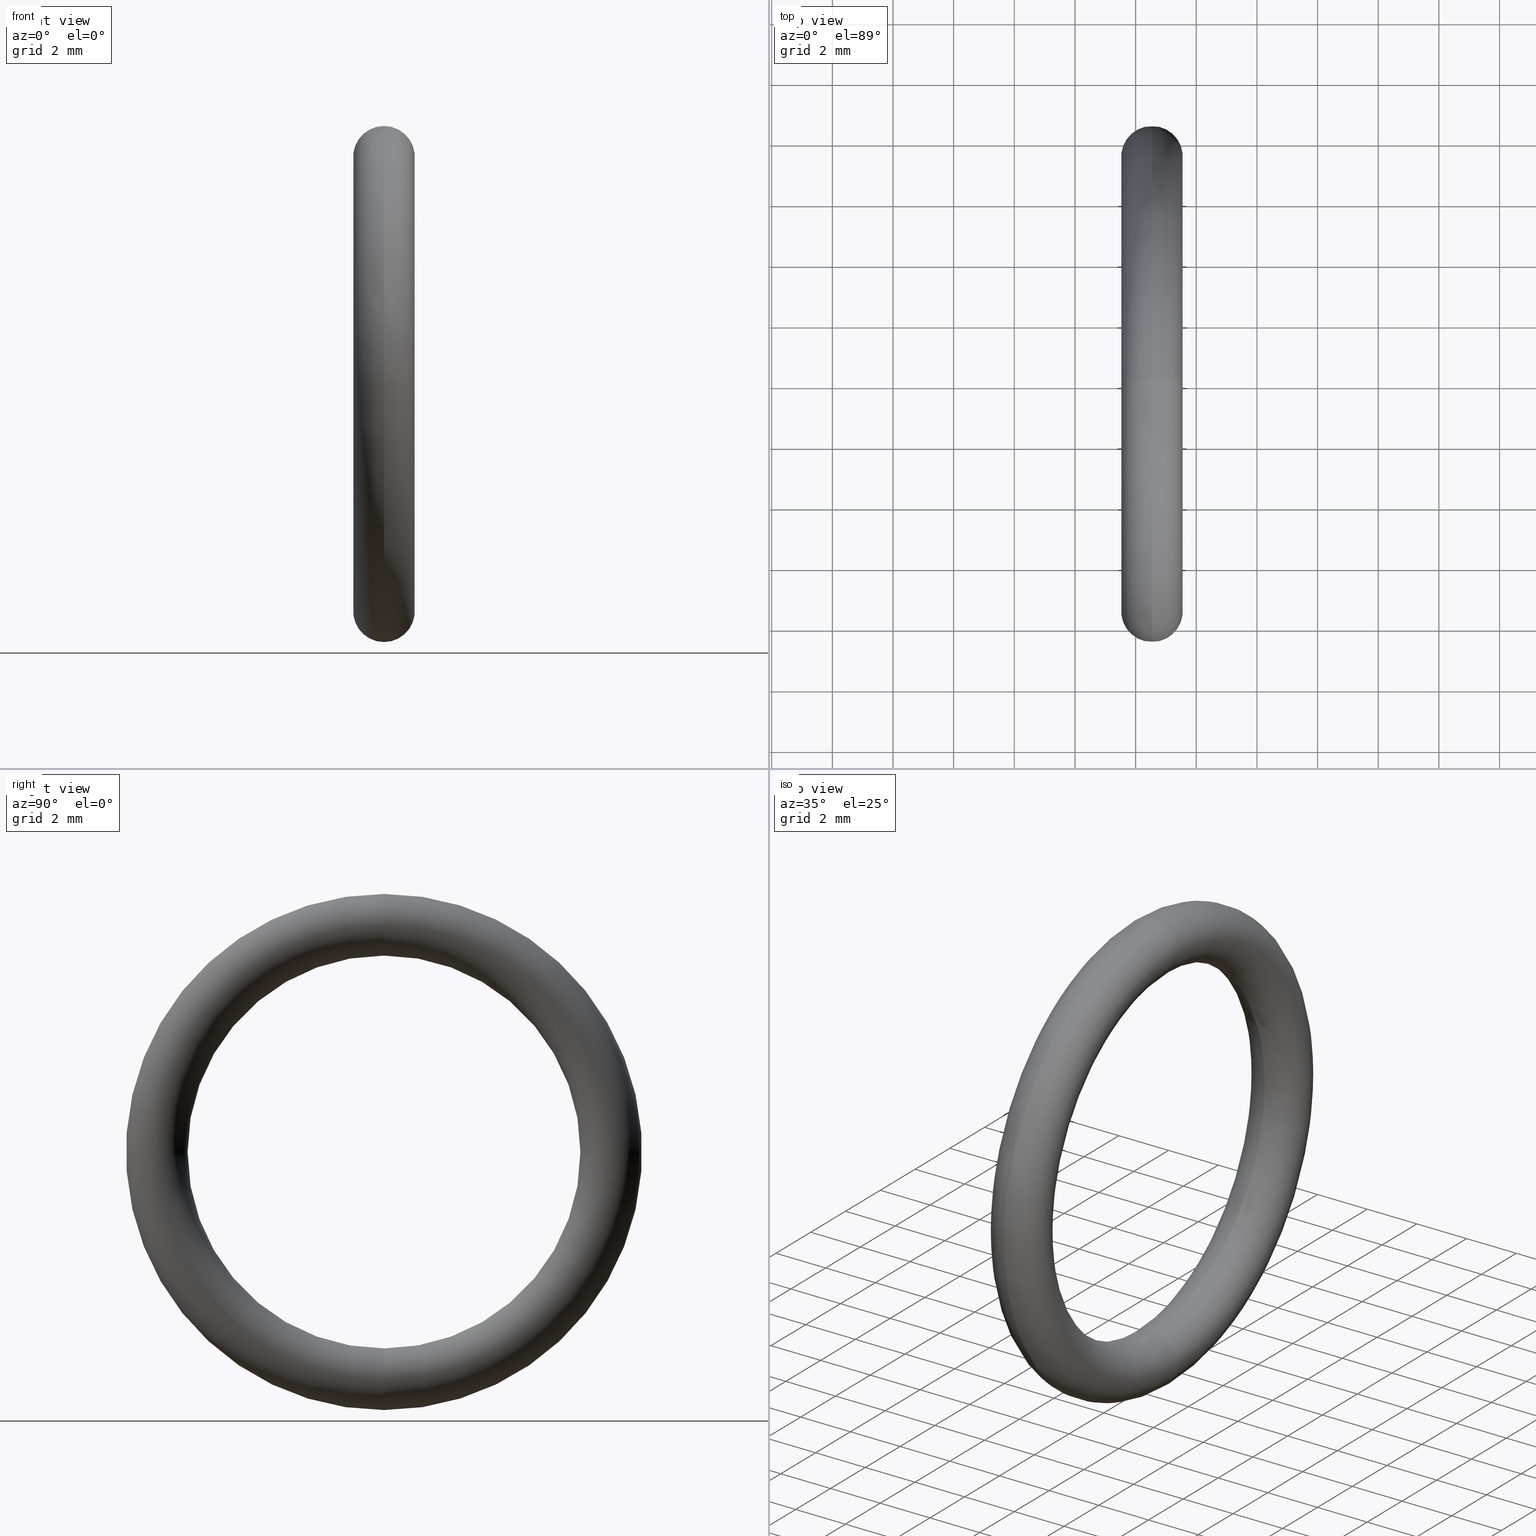
[diagram: canonical four-view strip — front | top / right | iso, engineering-drawing reading convention]
A machine part, canonical four-view strip (front | top / right | iso — engineering-drawing reading convention). The complete STEP part file that produces these views, byte-faithful:
ISO-10303-21;
HEADER;
FILE_DESCRIPTION (( 'STEP AP203' ),
    '1' );
FILE_NAME ('OR-38-BN.STEP',
    '2008-03-29T10:02:29',
    ( 'Baystate-05' ),
    ( 'BayState InfoTech' ),
    'SwSTEP 2.0',
    'SolidWorks 2007',
    '' );
FILE_SCHEMA (( 'CONFIG_CONTROL_DESIGN' ));
ENDSEC;

DATA;
#1 = DIRECTION ( 'NONE',  ( -1.000000000000000000, 0.0000000000000000000, 0.0000000000000000000 ) ) ;
#2 = DIRECTION ( 'NONE',  ( 0.0000000000000000000, 0.0000000000000000000, 1.000000000000000000 ) ) ;
#3 = EDGE_CURVE ( 'NONE', #4, #81, #5, .T. ) ;
#4 = VERTEX_POINT ( 'NONE', #54 ) ;
#5 = CIRCLE ( 'NONE', #58, 0.03999999999999998000 ) ;
#6 = CARTESIAN_POINT ( 'NONE',  ( 0.1000000000000000500, 0.0000000000000000000, 0.0000000000000000000 ) ) ;
#7 = DIRECTION ( 'NONE',  ( 0.0000000000000000000, 0.0000000000000000000, 1.000000000000000000 ) ) ;
#8 = DIRECTION ( 'NONE',  ( -1.000000000000000000, 0.0000000000000000000, 0.0000000000000000000 ) ) ;
#9 = CARTESIAN_POINT ( 'NONE',  ( 0.1000000000000000500, 0.0000000000000000000, 0.0000000000000000000 ) ) ;
#10 = AXIS2_PLACEMENT_3D ( 'NONE', #9, #8, #7 ) ;
#11 = CARTESIAN_POINT ( 'NONE',  ( 0.1000000000000000500, 0.0000000000000000000, 0.0000000000000000000 ) ) ;
#12 = EDGE_LOOP ( 'NONE', ( #79, #43, #42, #20 ) ) ;
#13 = ADVANCED_FACE ( 'NONE', ( #53 ), #52, .T. ) ;
#14 = ORIENTED_EDGE ( 'NONE', *, *, #41, .F. ) ;
#15 = ORIENTED_EDGE ( 'NONE', *, *, #71, .F. ) ;
#16 = CLOSED_SHELL ( 'NONE', ( #78, #39, #13, #72 ) ) ;
#17 = ORIENTED_EDGE ( 'NONE', *, *, #64, .T. ) ;
#18 = VERTEX_POINT ( 'NONE', #86 ) ;
#19 = EDGE_CURVE ( 'NONE', #18, #21, #93, .T. ) ;
#20 = ORIENTED_EDGE ( 'NONE', *, *, #40, .F. ) ;
#21 = VERTEX_POINT ( 'NONE', #88 ) ;
#22 = ORIENTED_EDGE ( 'NONE', *, *, #19, .F. ) ;
#23 = EDGE_LOOP ( 'NONE', ( #22, #17, #24, #15 ) ) ;
#24 = ORIENTED_EDGE ( 'NONE', *, *, #3, .T. ) ;
#25 = CARTESIAN_POINT ( 'NONE',  ( 0.1000000000000000500, 0.0000000000000000000, 0.0000000000000000000 ) ) ;
#26 = AXIS2_PLACEMENT_3D ( 'NONE', #25, #1, #2 ) ;
#27 = CIRCLE ( 'NONE', #26, 0.2550000000000000000 ) ;
#28 = DIRECTION ( 'NONE',  ( 0.0000000000000000000, 0.0000000000000000000, -1.000000000000000000 ) ) ;
#29 = DIRECTION ( 'NONE',  ( 0.0000000000000000000, -1.000000000000000000, 0.0000000000000000000 ) ) ;
#30 = CARTESIAN_POINT ( 'NONE',  ( 0.1000000000000000500, 0.0000000000000000000, 0.2949999999999999800 ) ) ;
#31 = AXIS2_PLACEMENT_3D ( 'NONE', #30, #29, #28 ) ;
#32 = CIRCLE ( 'NONE', #31, 0.03999999999999998000 ) ;
#33 = CIRCLE ( 'NONE', #10, 0.2550000000000000000 ) ;
#34 = DIRECTION ( 'NONE',  ( 0.0000000000000000000, 0.0000000000000000000, 1.000000000000000000 ) ) ;
#35 = DIRECTION ( 'NONE',  ( -1.000000000000000000, 0.0000000000000000000, 0.0000000000000000000 ) ) ;
#36 = CARTESIAN_POINT ( 'NONE',  ( 0.1000000000000000500, 0.0000000000000000000, 0.0000000000000000000 ) ) ;
#37 = AXIS2_PLACEMENT_3D ( 'NONE', #36, #35, #34 ) ;
#38 = TOROIDAL_SURFACE ( 'NONE', #37, 0.2949999999999999800, 0.04000000000000000100 ) ;
#39 = ADVANCED_FACE ( 'NONE', ( #87 ), #38, .T. ) ;
#40 = EDGE_CURVE ( 'NONE', #81, #21, #33, .T. ) ;
#41 = EDGE_CURVE ( 'NONE', #4, #18, #51, .T. ) ;
#42 = ORIENTED_EDGE ( 'NONE', *, *, #19, .T. ) ;
#43 = ORIENTED_EDGE ( 'NONE', *, *, #41, .T. ) ;
#44 = DIRECTION ( 'NONE',  ( -1.000000000000000000, 0.0000000000000000000, 0.0000000000000000000 ) ) ;
#45 = AXIS2_PLACEMENT_3D ( 'NONE', #6, #44, #77 ) ;
#46 = CIRCLE ( 'NONE', #45, 0.3349999999999999600 ) ;
#47 = CARTESIAN_POINT ( 'NONE',  ( 0.1000000000000000500, 3.612708057484692000E-017, -0.2949999999999999800 ) ) ;
#48 = DIRECTION ( 'NONE',  ( 0.0000000000000000000, 0.0000000000000000000, 1.000000000000000000 ) ) ;
#49 = DIRECTION ( 'NONE',  ( -1.000000000000000000, 0.0000000000000000000, 0.0000000000000000000 ) ) ;
#50 = AXIS2_PLACEMENT_3D ( 'NONE', #11, #49, #48 ) ;
#51 = CIRCLE ( 'NONE', #50, 0.3349999999999999600 ) ;
#52 = TOROIDAL_SURFACE ( 'NONE', #85, 0.2949999999999999800, 0.04000000000000000100 ) ;
#53 = FACE_OUTER_BOUND ( 'NONE', #66, .T. ) ;
#54 = CARTESIAN_POINT ( 'NONE',  ( 0.1000000000000000500, 4.102566777143632800E-017, -0.3349999999999999600 ) ) ;
#55 = DIRECTION ( 'NONE',  ( 0.0000000000000000000, -1.224646799147353900E-016, 1.000000000000000000 ) ) ;
#56 = DIRECTION ( 'NONE',  ( 0.0000000000000000000, 1.000000000000000000, 1.224646799147353200E-016 ) ) ;
#57 = CARTESIAN_POINT ( 'NONE',  ( 0.1000000000000000500, 3.612708057484692000E-017, -0.2949999999999999800 ) ) ;
#58 = AXIS2_PLACEMENT_3D ( 'NONE', #57, #56, #55 ) ;
#59 = ORIENTED_EDGE ( 'NONE', *, *, #67, .T. ) ;
#60 = ORIENTED_EDGE ( 'NONE', *, *, #71, .T. ) ;
#61 = ORIENTED_EDGE ( 'NONE', *, *, #67, .F. ) ;
#62 = ORIENTED_EDGE ( 'NONE', *, *, #64, .F. ) ;
#63 = ORIENTED_EDGE ( 'NONE', *, *, #68, .T. ) ;
#64 = EDGE_CURVE ( 'NONE', #18, #4, #46, .T. ) ;
#65 = EDGE_LOOP ( 'NONE', ( #14, #61, #70, #63 ) ) ;
#66 = EDGE_LOOP ( 'NONE', ( #62, #69, #60, #59 ) ) ;
#67 = EDGE_CURVE ( 'NONE', #81, #4, #76, .T. ) ;
#68 = EDGE_CURVE ( 'NONE', #21, #18, #32, .T. ) ;
#69 = ORIENTED_EDGE ( 'NONE', *, *, #68, .F. ) ;
#70 = ORIENTED_EDGE ( 'NONE', *, *, #40, .T. ) ;
#71 = EDGE_CURVE ( 'NONE', #21, #81, #27, .T. ) ;
#72 = ADVANCED_FACE ( 'NONE', ( #123 ), #101, .T. ) ;
#73 = DIRECTION ( 'NONE',  ( 0.0000000000000000000, -1.224646799147353900E-016, 1.000000000000000000 ) ) ;
#74 = DIRECTION ( 'NONE',  ( 0.0000000000000000000, 1.000000000000000000, 1.224646799147353200E-016 ) ) ;
#75 = AXIS2_PLACEMENT_3D ( 'NONE', #47, #74, #73 ) ;
#76 = CIRCLE ( 'NONE', #75, 0.03999999999999998000 ) ;
#77 = DIRECTION ( 'NONE',  ( 0.0000000000000000000, 0.0000000000000000000, 1.000000000000000000 ) ) ;
#78 = ADVANCED_FACE ( 'NONE', ( #122 ), #124, .T. ) ;
#79 = ORIENTED_EDGE ( 'NONE', *, *, #3, .F. ) ;
#80 = MANIFOLD_SOLID_BREP ( 'NONE', #16 ) ;
#81 = VERTEX_POINT ( 'NONE', #119 ) ;
#82 = DIRECTION ( 'NONE',  ( 0.0000000000000000000, 0.0000000000000000000, 1.000000000000000000 ) ) ;
#83 = DIRECTION ( 'NONE',  ( -1.000000000000000000, 0.0000000000000000000, 0.0000000000000000000 ) ) ;
#84 = CARTESIAN_POINT ( 'NONE',  ( 0.1000000000000000500, 0.0000000000000000000, 0.0000000000000000000 ) ) ;
#85 = AXIS2_PLACEMENT_3D ( 'NONE', #84, #83, #82 ) ;
#86 = CARTESIAN_POINT ( 'NONE',  ( 0.1000000000000000500, 0.0000000000000000000, 0.3349999999999999600 ) ) ;
#87 = FACE_OUTER_BOUND ( 'NONE', #23, .T. ) ;
#88 = CARTESIAN_POINT ( 'NONE',  ( 0.1000000000000000500, 0.0000000000000000000, 0.2550000000000000000 ) ) ;
#89 = DIRECTION ( 'NONE',  ( 0.0000000000000000000, 0.0000000000000000000, -1.000000000000000000 ) ) ;
#90 = DIRECTION ( 'NONE',  ( 0.0000000000000000000, -1.000000000000000000, 0.0000000000000000000 ) ) ;
#91 = CARTESIAN_POINT ( 'NONE',  ( 0.1000000000000000500, 0.0000000000000000000, 0.2949999999999999800 ) ) ;
#92 = AXIS2_PLACEMENT_3D ( 'NONE', #91, #90, #89 ) ;
#93 = CIRCLE ( 'NONE', #92, 0.03999999999999998000 ) ;
#94 = UNCERTAINTY_MEASURE_WITH_UNIT (LENGTH_MEASURE( 1.000000000000000100E-005 ), #95, 'distance_accuracy_value', 'NONE');
#95 =( CONVERSION_BASED_UNIT ( 'INCH', #96 ) LENGTH_UNIT ( ) NAMED_UNIT ( #117 ) );
#96 = LENGTH_MEASURE_WITH_UNIT ( LENGTH_MEASURE( 0.02539999999999999900 ), #115 );
#97 =( GEOMETRIC_REPRESENTATION_CONTEXT ( 3 ) GLOBAL_UNCERTAINTY_ASSIGNED_CONTEXT ( ( #94 ) ) GLOBAL_UNIT_ASSIGNED_CONTEXT ( ( #95, #103, #116 ) ) REPRESENTATION_CONTEXT ( 'NONE', 'WORKASPACE' ) );
#98 = CARTESIAN_POINT ( 'NONE',  ( 0.1000000000000000500, 0.0000000000000000000, 0.0000000000000000000 ) ) ;
#99 = DIRECTION ( 'NONE',  ( 0.0000000000000000000, 0.0000000000000000000, 1.000000000000000000 ) ) ;
#100 = DIRECTION ( 'NONE',  ( -1.000000000000000000, 0.0000000000000000000, 0.0000000000000000000 ) ) ;
#101 = TOROIDAL_SURFACE ( 'NONE', #118, 0.2949999999999999800, 0.04000000000000000100 ) ;
#102 = DIRECTION ( 'NONE',  ( 0.0000000000000000000, 0.0000000000000000000, 1.000000000000000000 ) ) ;
#103 =( NAMED_UNIT ( * ) PLANE_ANGLE_UNIT ( ) SI_UNIT ( $, .RADIAN. ) );
#104 = ADVANCED_BREP_SHAPE_REPRESENTATION ( 'OR-38-BN', ( #80, #108 ), #97 ) ;
#105 = DIRECTION ( 'NONE',  ( 1.000000000000000000, 0.0000000000000000000, 0.0000000000000000000 ) ) ;
#106 = DIRECTION ( 'NONE',  ( 0.0000000000000000000, 0.0000000000000000000, 1.000000000000000000 ) ) ;
#107 = CARTESIAN_POINT ( 'NONE',  ( 0.0000000000000000000, 0.0000000000000000000, 0.0000000000000000000 ) ) ;
#108 = AXIS2_PLACEMENT_3D ( 'NONE', #107, #106, #105 ) ;
#109 = PERSON ( 'UNSPECIFIED', 'UNSPECIFIED', 'UNSPECIFIED', ('UNSPECIFIED'), ('UNSPECIFIED'), ('UNSPECIFIED') ) ;
#110 = PRODUCT ( 'OR-38-BN', 'OR-38-BN', '', ( #111 ) ) ;
#111 = MECHANICAL_CONTEXT ( 'NONE', #113, 'mechanical' ) ;
#112 = APPLICATION_PROTOCOL_DEFINITION ( 'international standard', 'config_control_design', 1994, #113 ) ;
#113 = APPLICATION_CONTEXT ( 'configuration controlled 3d designs of mechanical parts and assemblies' ) ;
#114 = CARTESIAN_POINT ( 'NONE',  ( 0.1000000000000000500, 0.0000000000000000000, 0.0000000000000000000 ) ) ;
#115 =( LENGTH_UNIT ( ) NAMED_UNIT ( * ) SI_UNIT ( $, .METRE. ) );
#116 =( NAMED_UNIT ( * ) SI_UNIT ( $, .STERADIAN. ) SOLID_ANGLE_UNIT ( ) );
#117 = DIMENSIONAL_EXPONENTS ( 1.000000000000000000, 0.0000000000000000000, 0.0000000000000000000, 0.0000000000000000000, 0.0000000000000000000, 0.0000000000000000000, 0.0000000000000000000 ) ;
#118 = AXIS2_PLACEMENT_3D ( 'NONE', #98, #121, #102 ) ;
#119 = CARTESIAN_POINT ( 'NONE',  ( 0.1000000000000000500, 3.122849337825750500E-017, -0.2550000000000000000 ) ) ;
#120 = AXIS2_PLACEMENT_3D ( 'NONE', #114, #100, #99 ) ;
#121 = DIRECTION ( 'NONE',  ( -1.000000000000000000, 0.0000000000000000000, 0.0000000000000000000 ) ) ;
#122 = FACE_OUTER_BOUND ( 'NONE', #12, .T. ) ;
#123 = FACE_OUTER_BOUND ( 'NONE', #65, .T. ) ;
#124 = TOROIDAL_SURFACE ( 'NONE', #120, 0.2949999999999999800, 0.04000000000000000100 ) ;
#125 = PERSON_AND_ORGANIZATION_ROLE ( 'creator' ) ;
#126 = PERSON_AND_ORGANIZATION ( #109, #145 ) ;
#127 = CC_DESIGN_APPROVAL ( #146, ( #150 ) ) ;
#128 = APPROVAL_DATE_TIME ( #179, #146 ) ;
#129 = LOCAL_TIME ( 15, 32, 29.00000000000000000, #130 ) ;
#130 = COORDINATED_UNIVERSAL_TIME_OFFSET ( 5, 30, .AHEAD. ) ;
#131 = CC_DESIGN_DATE_AND_TIME_ASSIGNMENT ( #133, #132, ( #150 ) ) ;
#132 = DATE_TIME_ROLE ( 'creation_date' ) ;
#133 = DATE_AND_TIME ( #134, #129 ) ;
#134 = CALENDAR_DATE ( 2008, 29, 3 ) ;
#135 = PERSON_AND_ORGANIZATION_ROLE ( 'creator' ) ;
#136 = PERSON_AND_ORGANIZATION ( #109, #145 ) ;
#137 = CC_DESIGN_APPROVAL ( #156, ( #173 ) ) ;
#138 = APPROVAL_DATE_TIME ( #151, #156 ) ;
#139 = PERSON_AND_ORGANIZATION ( #109, #145 ) ;
#140 = SECURITY_CLASSIFICATION_LEVEL ( 'unclassified' ) ;
#141 = CC_DESIGN_PERSON_AND_ORGANIZATION_ASSIGNMENT ( #143, #142, ( #173 ) ) ;
#142 = PERSON_AND_ORGANIZATION_ROLE ( 'design_supplier' ) ;
#143 = PERSON_AND_ORGANIZATION ( #109, #145 ) ;
#144 = CC_DESIGN_PERSON_AND_ORGANIZATION_ASSIGNMENT ( #136, #135, ( #173 ) ) ;
#145 = ORGANIZATION ( 'UNSPECIFIED', 'UNSPECIFIED', '' ) ;
#146 = APPROVAL ( #147, 'UNSPECIFIED' ) ;
#147 = APPROVAL_STATUS ( 'not_yet_approved' ) ;
#148 = DESIGN_CONTEXT ( 'detailed design', #196, 'design' ) ;
#149 = PERSON_AND_ORGANIZATION ( #109, #145 ) ;
#150 = PRODUCT_DEFINITION ( 'UNKNOWN', '', #173, #148 ) ;
#151 = DATE_AND_TIME ( #152, #153 ) ;
#152 = CALENDAR_DATE ( 2008, 29, 3 ) ;
#153 = LOCAL_TIME ( 15, 32, 29.00000000000000000, #154 ) ;
#154 = COORDINATED_UNIVERSAL_TIME_OFFSET ( 5, 30, .AHEAD. ) ;
#155 = APPROVAL_PERSON_ORGANIZATION ( #172, #156, #170 ) ;
#156 = APPROVAL ( #171, 'UNSPECIFIED' ) ;
#157 = PERSON_AND_ORGANIZATION ( #109, #145 ) ;
#158 = SHAPE_DEFINITION_REPRESENTATION ( #159, #104 ) ;
#159 = PRODUCT_DEFINITION_SHAPE ( 'NONE', 'NONE',  #150 ) ;
#160 = PRODUCT_RELATED_PRODUCT_CATEGORY ( 'detail', '', ( #110 ) ) ;
#161 = APPROVAL ( #162, 'UNSPECIFIED' ) ;
#162 = APPROVAL_STATUS ( 'not_yet_approved' ) ;
#163 = PERSON_AND_ORGANIZATION ( #109, #145 ) ;
#164 = CC_DESIGN_DATE_AND_TIME_ASSIGNMENT ( #166, #165, ( #176 ) ) ;
#165 = DATE_TIME_ROLE ( 'classification_date' ) ;
#166 = DATE_AND_TIME ( #167, #168 ) ;
#167 = CALENDAR_DATE ( 2008, 29, 3 ) ;
#168 = LOCAL_TIME ( 15, 32, 29.00000000000000000, #169 ) ;
#169 = COORDINATED_UNIVERSAL_TIME_OFFSET ( 5, 30, .AHEAD. ) ;
#170 = APPROVAL_ROLE ( '' ) ;
#171 = APPROVAL_STATUS ( 'not_yet_approved' ) ;
#172 = PERSON_AND_ORGANIZATION ( #109, #145 ) ;
#173 = PRODUCT_DEFINITION_FORMATION_WITH_SPECIFIED_SOURCE ( 'ANY', '', #110, .NOT_KNOWN. ) ;
#174 = CC_DESIGN_PERSON_AND_ORGANIZATION_ASSIGNMENT ( #139, #175, ( #176 ) ) ;
#175 = PERSON_AND_ORGANIZATION_ROLE ( 'classification_officer' ) ;
#176 = SECURITY_CLASSIFICATION ( '', '', #140 ) ;
#177 = CC_DESIGN_PERSON_AND_ORGANIZATION_ASSIGNMENT ( #126, #125, ( #150 ) ) ;
#178 = APPLICATION_PROTOCOL_DEFINITION ( 'international standard', 'config_control_design', 1994, #196 ) ;
#179 = DATE_AND_TIME ( #180, #181 ) ;
#180 = CALENDAR_DATE ( 2008, 29, 3 ) ;
#181 = LOCAL_TIME ( 15, 32, 29.00000000000000000, #182 ) ;
#182 = COORDINATED_UNIVERSAL_TIME_OFFSET ( 5, 30, .AHEAD. ) ;
#183 = PERSON_AND_ORGANIZATION_ROLE ( 'design_owner' ) ;
#184 = CC_DESIGN_PERSON_AND_ORGANIZATION_ASSIGNMENT ( #157, #183, ( #110 ) ) ;
#185 = APPROVAL_PERSON_ORGANIZATION ( #149, #146, #186 ) ;
#186 = APPROVAL_ROLE ( '' ) ;
#187 = CC_DESIGN_SECURITY_CLASSIFICATION ( #176, ( #173 ) ) ;
#188 = CC_DESIGN_APPROVAL ( #161, ( #176 ) ) ;
#189 = APPROVAL_DATE_TIME ( #190, #161 ) ;
#190 = DATE_AND_TIME ( #191, #192 ) ;
#191 = CALENDAR_DATE ( 2008, 29, 3 ) ;
#192 = LOCAL_TIME ( 15, 32, 29.00000000000000000, #193 ) ;
#193 = COORDINATED_UNIVERSAL_TIME_OFFSET ( 5, 30, .AHEAD. ) ;
#194 = APPROVAL_PERSON_ORGANIZATION ( #163, #161, #195 ) ;
#195 = APPROVAL_ROLE ( '' ) ;
#196 = APPLICATION_CONTEXT ( 'configuration controlled 3d designs of mechanical parts and assemblies' ) ;
ENDSEC;
END-ISO-10303-21;
